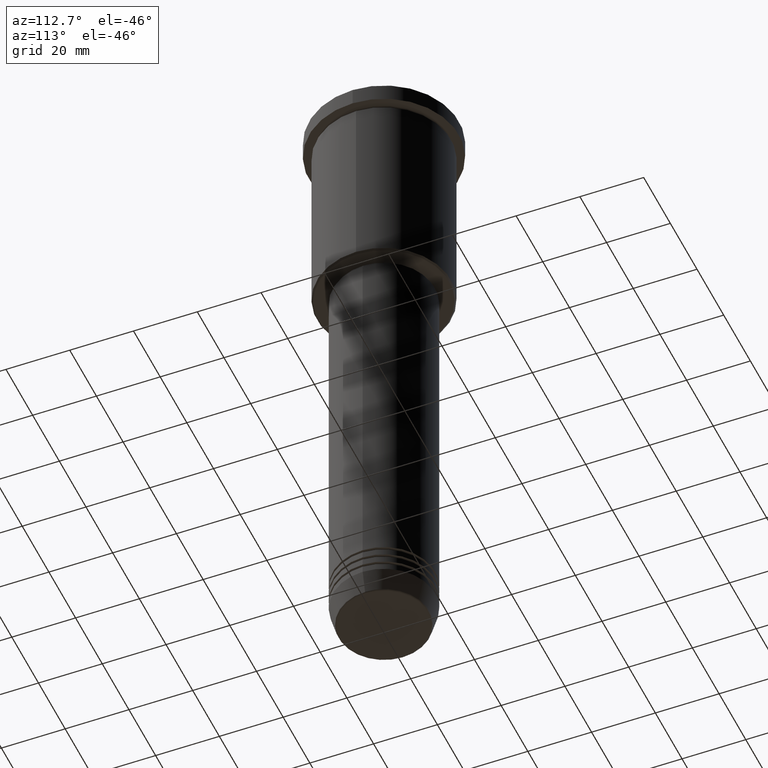
[diagram: clean part render]
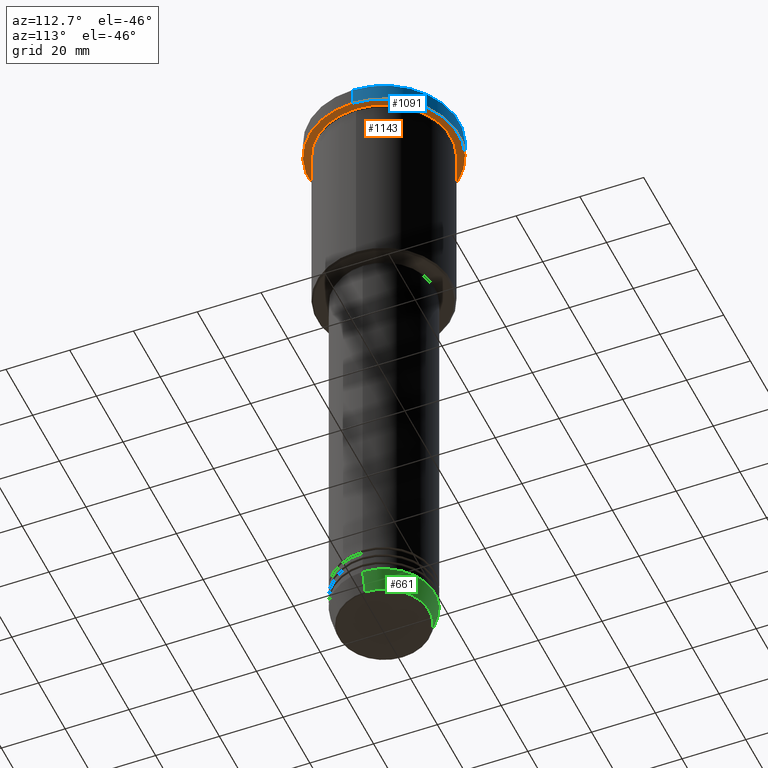
[diagram: same view with three faces highlighted in distinct colors, each labeled with its STEP entity id]
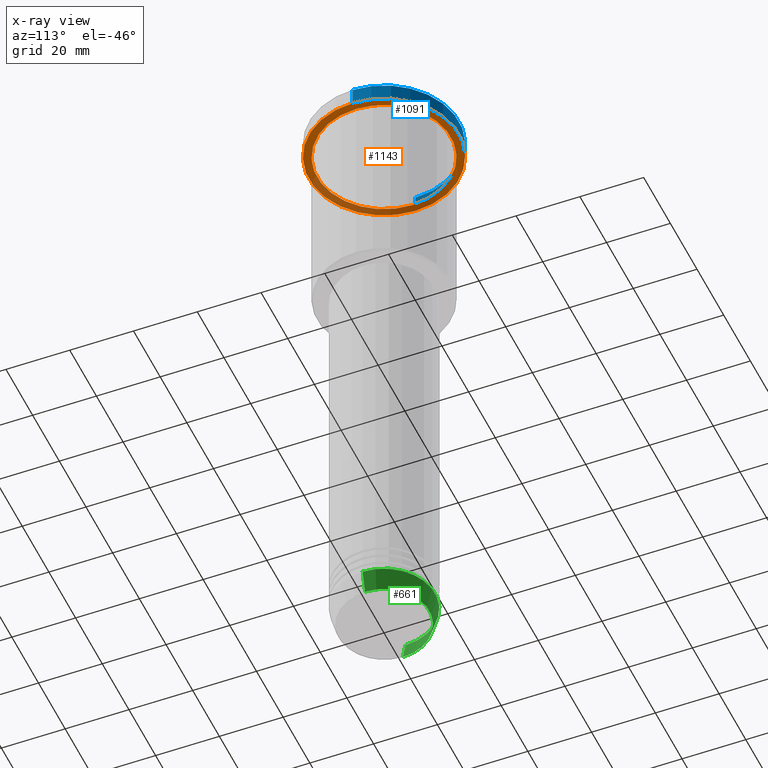
[diagram: x-ray of the same camera — body ghosted, the three highlighted faces saturated]
A machine part, auxiliary view with three faces highlighted in distinct colors.
The next image is the same camera in x-ray (body ghosted, the three faces saturated) — at least one of them is partly hidden behind the body in this view.
Their STEP definitions:

[orange] entity #1143 — the highlighted planar face has unit normal (0, 0, -1).
#47 = DIRECTION ( 'NONE',  ( 1.000000000000000000, 0.000000000000000000, 0.000000000000000000 ) ) ;
#70 = CARTESIAN_POINT ( 'NONE',  ( -21.00000000000000000, 0.000000000000000000, -5.999999999999994671 ) ) ;
#94 = VERTEX_POINT ( 'NONE', #314 ) ;
#144 = FACE_BOUND ( 'NONE', #1130, .T. ) ;
#187 = CARTESIAN_POINT ( 'NONE',  ( 21.00000000000000000, 2.571758278209441661E-15, -5.999999999999994671 ) ) ;
#204 = CIRCLE ( 'NONE', #402, 23.50000000000000000 ) ;
#238 = VERTEX_POINT ( 'NONE', #441 ) ;
#269 = VERTEX_POINT ( 'NONE', #70 ) ;
#270 = ORIENTED_EDGE ( 'NONE', *, *, #1127, .F. ) ;
#291 = ORIENTED_EDGE ( 'NONE', *, *, #525, .T. ) ;
#314 = CARTESIAN_POINT ( 'NONE',  ( -23.50000000000000000, 2.877919977996280320E-15, -5.999999999999994671 ) ) ;
#357 = AXIS2_PLACEMENT_3D ( 'NONE', #559, #925, #651 ) ;
#377 = DIRECTION ( 'NONE',  ( -1.000000000000000000, 0.000000000000000000, 0.000000000000000000 ) ) ;
#378 = AXIS2_PLACEMENT_3D ( 'NONE', #1008, #732, #998 ) ;
#402 = AXIS2_PLACEMENT_3D ( 'NONE', #1051, #875, #47 ) ;
#416 = FACE_OUTER_BOUND ( 'NONE', #605, .T. ) ;
#441 = CARTESIAN_POINT ( 'NONE',  ( 23.50000000000000000, 0.000000000000000000, -5.999999999999994671 ) ) ;
#449 = VERTEX_POINT ( 'NONE', #187 ) ;
#472 = DIRECTION ( 'NONE',  ( -0.000000000000000000, -0.000000000000000000, 1.000000000000000000 ) ) ;
#500 = CIRCLE ( 'NONE', #378, 23.50000000000000000 ) ;
#525 = EDGE_CURVE ( 'NONE', #449, #269, #977, .T. ) ;
#559 = CARTESIAN_POINT ( 'NONE',  ( 0.000000000000000000, 0.000000000000000000, -5.999999999999994671 ) ) ;
#605 = EDGE_LOOP ( 'NONE', ( #1002, #270 ) ) ;
#606 = PLANE ( 'NONE',  #846 ) ;
#651 = DIRECTION ( 'NONE',  ( -1.000000000000000000, 0.000000000000000000, 0.000000000000000000 ) ) ;
#732 = DIRECTION ( 'NONE',  ( -0.000000000000000000, -0.000000000000000000, 1.000000000000000000 ) ) ;
#733 = EDGE_CURVE ( 'NONE', #238, #94, #500, .T. ) ;
#768 = CIRCLE ( 'NONE', #357, 21.00000000000000000 ) ;
#831 = ORIENTED_EDGE ( 'NONE', *, *, #962, .T. ) ;
#846 = AXIS2_PLACEMENT_3D ( 'NONE', #1157, #1148, #887 ) ;
#875 = DIRECTION ( 'NONE',  ( -0.000000000000000000, -0.000000000000000000, 1.000000000000000000 ) ) ;
#887 = DIRECTION ( 'NONE',  ( -1.000000000000000000, 0.000000000000000000, -0.000000000000000000 ) ) ;
#925 = DIRECTION ( 'NONE',  ( -0.000000000000000000, -0.000000000000000000, 1.000000000000000000 ) ) ;
#926 = CARTESIAN_POINT ( 'NONE',  ( 0.000000000000000000, 0.000000000000000000, -5.999999999999994671 ) ) ;
#953 = AXIS2_PLACEMENT_3D ( 'NONE', #926, #472, #377 ) ;
#962 = EDGE_CURVE ( 'NONE', #269, #449, #768, .T. ) ;
#977 = CIRCLE ( 'NONE', #953, 21.00000000000000000 ) ;
#998 = DIRECTION ( 'NONE',  ( 1.000000000000000000, 0.000000000000000000, 0.000000000000000000 ) ) ;
#1002 = ORIENTED_EDGE ( 'NONE', *, *, #733, .F. ) ;
#1008 = CARTESIAN_POINT ( 'NONE',  ( 0.000000000000000000, 0.000000000000000000, -5.999999999999994671 ) ) ;
#1051 = CARTESIAN_POINT ( 'NONE',  ( 0.000000000000000000, 0.000000000000000000, -5.999999999999994671 ) ) ;
#1127 = EDGE_CURVE ( 'NONE', #94, #238, #204, .T. ) ;
#1130 = EDGE_LOOP ( 'NONE', ( #831, #291 ) ) ;
#1143 = ADVANCED_FACE ( 'NONE', ( #144, #416 ), #606, .T. ) ;
#1148 = DIRECTION ( 'NONE',  ( 0.000000000000000000, 0.000000000000000000, -1.000000000000000000 ) ) ;
#1157 = CARTESIAN_POINT ( 'NONE',  ( 0.000000000000000000, 23.50000000000000000, -5.999999999999994671 ) ) ;

[blue] entity #1091 — the highlighted cylindrical surface (partial cylindrical patch) has radius 23.5 mm, axis along (-0, -0, 1).
#13 = ORIENTED_EDGE ( 'NONE', *, *, #328, .T. ) ;
#40 = VECTOR ( 'NONE', #1041, 1000.000000000000000 ) ;
#94 = VERTEX_POINT ( 'NONE', #314 ) ;
#231 = ORIENTED_EDGE ( 'NONE', *, *, #695, .T. ) ;
#233 = EDGE_CURVE ( 'NONE', #238, #731, #681, .T. ) ;
#238 = VERTEX_POINT ( 'NONE', #441 ) ;
#310 = FACE_OUTER_BOUND ( 'NONE', #906, .T. ) ;
#314 = CARTESIAN_POINT ( 'NONE',  ( -23.50000000000000000, 2.877919977996280320E-15, -5.999999999999994671 ) ) ;
#328 = EDGE_CURVE ( 'NONE', #94, #1048, #1009, .T. ) ;
#361 = AXIS2_PLACEMENT_3D ( 'NONE', #773, #428, #1139 ) ;
#378 = AXIS2_PLACEMENT_3D ( 'NONE', #1008, #732, #998 ) ;
#428 = DIRECTION ( 'NONE',  ( -0.000000000000000000, -0.000000000000000000, 1.000000000000000000 ) ) ;
#441 = CARTESIAN_POINT ( 'NONE',  ( 23.50000000000000000, 0.000000000000000000, -5.999999999999994671 ) ) ;
#500 = CIRCLE ( 'NONE', #378, 23.50000000000000000 ) ;
#601 = ORIENTED_EDGE ( 'NONE', *, *, #733, .T. ) ;
#611 = CARTESIAN_POINT ( 'NONE',  ( -23.50000000000000000, 2.877919977996280320E-15, -0.5000000000000004441 ) ) ;
#663 = CIRCLE ( 'NONE', #1012, 23.50000000000000000 ) ;
#677 = CYLINDRICAL_SURFACE ( 'NONE', #361, 23.50000000000000000 ) ;
#681 = LINE ( 'NONE', #1084, #40 ) ;
#683 = DIRECTION ( 'NONE',  ( 0.000000000000000000, 0.000000000000000000, -1.000000000000000000 ) ) ;
#695 = EDGE_CURVE ( 'NONE', #1048, #731, #663, .T. ) ;
#731 = VERTEX_POINT ( 'NONE', #811 ) ;
#732 = DIRECTION ( 'NONE',  ( -0.000000000000000000, -0.000000000000000000, 1.000000000000000000 ) ) ;
#733 = EDGE_CURVE ( 'NONE', #238, #94, #500, .T. ) ;
#773 = CARTESIAN_POINT ( 'NONE',  ( 0.000000000000000000, 0.000000000000000000, 0.000000000000000000 ) ) ;
#779 = CARTESIAN_POINT ( 'NONE',  ( 0.000000000000000000, 0.000000000000000000, -0.5000000000000004441 ) ) ;
#811 = CARTESIAN_POINT ( 'NONE',  ( 23.50000000000000000, 0.000000000000000000, -0.5000000000000004441 ) ) ;
#898 = CARTESIAN_POINT ( 'NONE',  ( -23.50000000000000000, 2.877919977996280320E-15, 0.000000000000000000 ) ) ;
#904 = DIRECTION ( 'NONE',  ( -0.000000000000000000, -0.000000000000000000, 1.000000000000000000 ) ) ;
#906 = EDGE_LOOP ( 'NONE', ( #601, #13, #231, #965 ) ) ;
#921 = VECTOR ( 'NONE', #904, 1000.000000000000000 ) ;
#965 = ORIENTED_EDGE ( 'NONE', *, *, #233, .F. ) ;
#998 = DIRECTION ( 'NONE',  ( 1.000000000000000000, 0.000000000000000000, 0.000000000000000000 ) ) ;
#1008 = CARTESIAN_POINT ( 'NONE',  ( 0.000000000000000000, 0.000000000000000000, -5.999999999999994671 ) ) ;
#1009 = LINE ( 'NONE', #898, #921 ) ;
#1012 = AXIS2_PLACEMENT_3D ( 'NONE', #779, #683, #1054 ) ;
#1041 = DIRECTION ( 'NONE',  ( -0.000000000000000000, -0.000000000000000000, 1.000000000000000000 ) ) ;
#1048 = VERTEX_POINT ( 'NONE', #611 ) ;
#1054 = DIRECTION ( 'NONE',  ( 1.000000000000000000, 0.000000000000000000, 0.000000000000000000 ) ) ;
#1084 = CARTESIAN_POINT ( 'NONE',  ( 23.50000000000000000, 0.000000000000000000, 0.000000000000000000 ) ) ;
#1091 = ADVANCED_FACE ( 'NONE', ( #310 ), #677, .T. ) ;
#1139 = DIRECTION ( 'NONE',  ( 1.000000000000000000, 0.000000000000000000, 0.000000000000000000 ) ) ;

[green] entity #661 — the highlighted conical surface has half-angle 15 deg.
#21 = VERTEX_POINT ( 'NONE', #484 ) ;
#60 = EDGE_CURVE ( 'NONE', #564, #245, #790, .T. ) ;
#74 = DIRECTION ( 'NONE',  ( -0.000000000000000000, -0.000000000000000000, 1.000000000000000000 ) ) ;
#113 = CARTESIAN_POINT ( 'NONE',  ( 14.22365507213719660, 0.000000000000000000, -200.6294095225512990 ) ) ;
#131 = CARTESIAN_POINT ( 'NONE',  ( 0.000000000000000000, 0.000000000000000000, -194.0000000000000284 ) ) ;
#159 = CIRCLE ( 'NONE', #434, 14.22365507213719660 ) ;
#188 = VERTEX_POINT ( 'NONE', #113 ) ;
#191 = DIRECTION ( 'NONE',  ( 0.2588190451025213501, 0.000000000000000000, 0.9659258262890680902 ) ) ;
#192 = CARTESIAN_POINT ( 'NONE',  ( 0.000000000000000000, 0.000000000000000000, -200.6294095225512990 ) ) ;
#202 = CIRCLE ( 'NONE', #553, 16.00000000000000000 ) ;
#220 = DIRECTION ( 'NONE',  ( -0.000000000000000000, -0.000000000000000000, 1.000000000000000000 ) ) ;
#245 = VERTEX_POINT ( 'NONE', #1168 ) ;
#256 = ORIENTED_EDGE ( 'NONE', *, *, #60, .T. ) ;
#277 = CARTESIAN_POINT ( 'NONE',  ( 16.00000000000000000, 0.000000000000000000, -194.0000000000000284 ) ) ;
#326 = CARTESIAN_POINT ( 'NONE',  ( -14.22365507213719660, 1.850665122131324126E-15, -200.6294095225512990 ) ) ;
#399 = ORIENTED_EDGE ( 'NONE', *, *, #943, .F. ) ;
#434 = AXIS2_PLACEMENT_3D ( 'NONE', #192, #568, #932 ) ;
#438 = DIRECTION ( 'NONE',  ( 1.000000000000000000, 0.000000000000000000, 0.000000000000000000 ) ) ;
#458 = VECTOR ( 'NONE', #191, 1000.000000000000000 ) ;
#484 = CARTESIAN_POINT ( 'NONE',  ( 16.00000000000000000, 0.000000000000000000, -194.0000000000000284 ) ) ;
#537 = CARTESIAN_POINT ( 'NONE',  ( 0.000000000000000000, 0.000000000000000000, -194.0000000000000284 ) ) ;
#544 = EDGE_CURVE ( 'NONE', #188, #564, #159, .T. ) ;
#553 = AXIS2_PLACEMENT_3D ( 'NONE', #537, #74, #438 ) ;
#564 = VERTEX_POINT ( 'NONE', #326 ) ;
#568 = DIRECTION ( 'NONE',  ( -0.000000000000000000, -0.000000000000000000, 1.000000000000000000 ) ) ;
#591 = AXIS2_PLACEMENT_3D ( 'NONE', #131, #220, #1071 ) ;
#661 = ADVANCED_FACE ( 'NONE', ( #800 ), #1096, .T. ) ;
#790 = LINE ( 'NONE', #1145, #938 ) ;
#800 = FACE_OUTER_BOUND ( 'NONE', #1146, .T. ) ;
#812 = EDGE_CURVE ( 'NONE', #21, #245, #202, .T. ) ;
#841 = ORIENTED_EDGE ( 'NONE', *, *, #812, .F. ) ;
#932 = DIRECTION ( 'NONE',  ( 1.000000000000000000, 0.000000000000000000, 0.000000000000000000 ) ) ;
#938 = VECTOR ( 'NONE', #1154, 1000.000000000000000 ) ;
#943 = EDGE_CURVE ( 'NONE', #188, #21, #1112, .T. ) ;
#1071 = DIRECTION ( 'NONE',  ( 1.000000000000000000, 0.000000000000000000, 0.000000000000000000 ) ) ;
#1096 = CONICAL_SURFACE ( 'NONE', #591, 16.00000000000000000, 0.2617993877991500740 ) ;
#1111 = ORIENTED_EDGE ( 'NONE', *, *, #544, .T. ) ;
#1112 = LINE ( 'NONE', #277, #458 ) ;
#1145 = CARTESIAN_POINT ( 'NONE',  ( -16.00000000000000000, 1.959434878635765131E-15, -194.0000000000000284 ) ) ;
#1146 = EDGE_LOOP ( 'NONE', ( #1111, #256, #841, #399 ) ) ;
#1154 = DIRECTION ( 'NONE',  ( -0.2588190451025213501, 3.169619151431772337E-17, 0.9659258262890680902 ) ) ;
#1168 = CARTESIAN_POINT ( 'NONE',  ( -16.00000000000000000, 1.959434878635765131E-15, -194.0000000000000284 ) ) ;